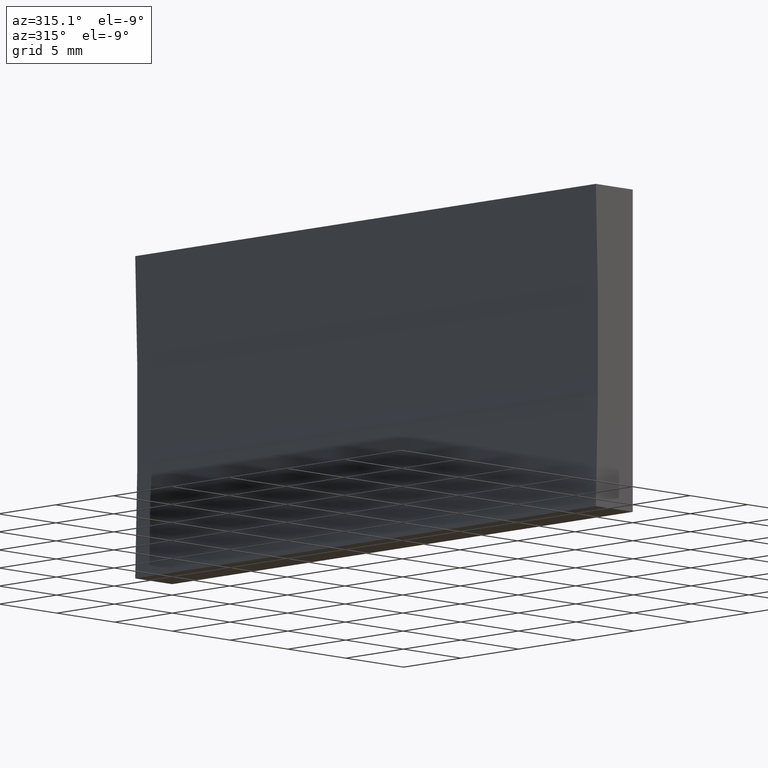
[diagram: clean part render]
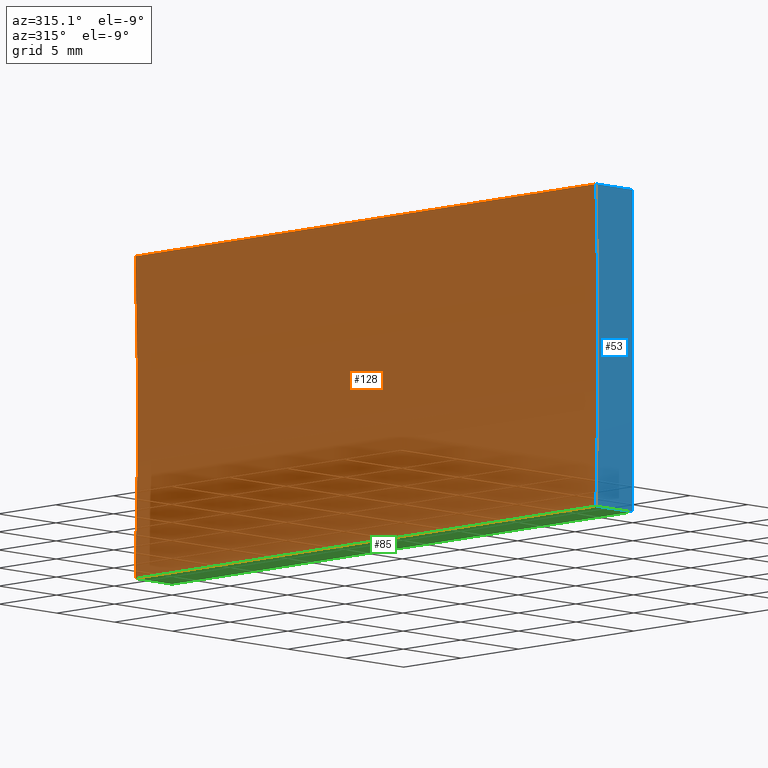
[diagram: same view with three faces highlighted in distinct colors, each labeled with its STEP entity id]
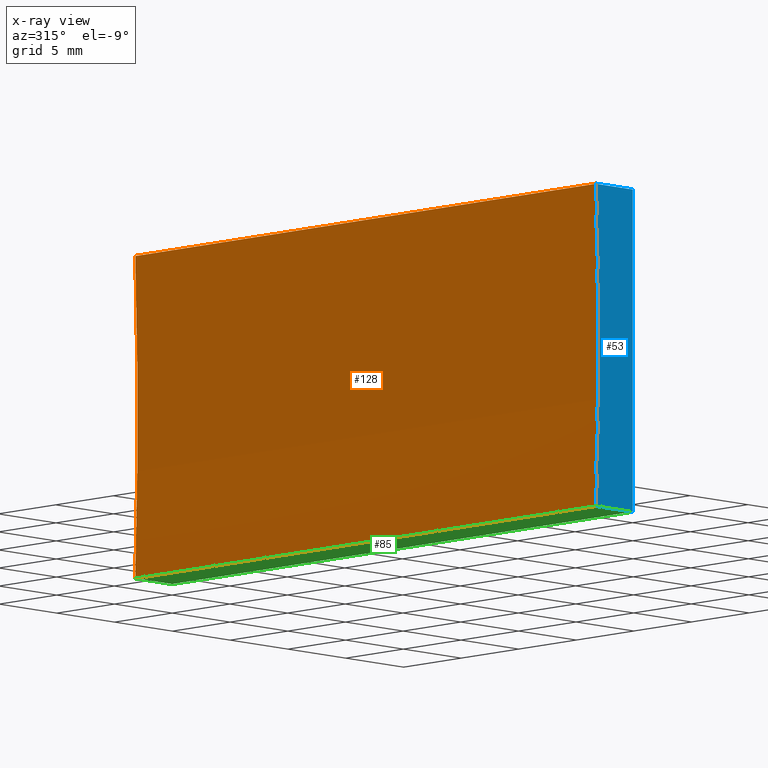
[diagram: x-ray of the same camera — body ghosted, the three highlighted faces saturated]
A machine part, auxiliary view with three faces highlighted in distinct colors.
The next image is the same camera in x-ray (body ghosted, the three faces saturated) — at least one of them is partly hidden behind the body in this view.
Their STEP definitions:

[orange] entity #128 — the highlighted cylindrical surface (partial cylindrical patch) has radius 258.5 mm, axis along (-0, -1, -0).
#21 = VERTEX_POINT ( 'NONE', #146 ) ;
#22 = CIRCLE ( 'NONE', #59, 258.5000000000000000 ) ;
#24 = CARTESIAN_POINT ( 'NONE',  ( -261.5000000000000000, 0.0000000000000000000, 10.00000000000003600 ) ) ;
#31 = LINE ( 'NONE', #202, #96 ) ;
#35 = VECTOR ( 'NONE', #45, 1000.000000000000000 ) ;
#37 = CYLINDRICAL_SURFACE ( 'NONE', #70, 258.5000000000000000 ) ;
#43 = ORIENTED_EDGE ( 'NONE', *, *, #156, .F. ) ;
#45 = DIRECTION ( 'NONE',  ( -0.0000000000000000000, -1.000000000000000000, -0.0000000000000000000 ) ) ;
#50 = LINE ( 'NONE', #197, #35 ) ;
#52 = DIRECTION ( 'NONE',  ( -0.0000000000000000000, -1.000000000000000000, -0.0000000000000000000 ) ) ;
#59 = AXIS2_PLACEMENT_3D ( 'NONE', #157, #52, #79 ) ;
#64 = DIRECTION ( 'NONE',  ( -0.0000000000000000000, -1.000000000000000000, -0.0000000000000000000 ) ) ;
#66 = CIRCLE ( 'NONE', #183, 258.5000000000000000 ) ;
#70 = AXIS2_PLACEMENT_3D ( 'NONE', #124, #147, #82 ) ;
#79 = DIRECTION ( 'NONE',  ( 0.0000000000000000000, 0.0000000000000000000, 1.000000000000000000 ) ) ;
#82 = DIRECTION ( 'NONE',  ( 0.0000000000000000000, 0.0000000000000000000, -1.000000000000000000 ) ) ;
#84 = EDGE_CURVE ( 'NONE', #177, #191, #31, .T. ) ;
#86 = EDGE_LOOP ( 'NONE', ( #129, #43, #90, #115 ) ) ;
#90 = ORIENTED_EDGE ( 'NONE', *, *, #192, .F. ) ;
#94 = DIRECTION ( 'NONE',  ( 0.0000000000000000000, 0.0000000000000000000, 1.000000000000000000 ) ) ;
#96 = VECTOR ( 'NONE', #188, 1000.000000000000000 ) ;
#108 = CARTESIAN_POINT ( 'NONE',  ( -3.193496016844377100, 40.00000000000000000, -1.734723475976807100E-014 ) ) ;
#109 = EDGE_CURVE ( 'NONE', #191, #21, #66, .T. ) ;
#115 = ORIENTED_EDGE ( 'NONE', *, *, #84, .T. ) ;
#117 = VERTEX_POINT ( 'NONE', #140 ) ;
#124 = CARTESIAN_POINT ( 'NONE',  ( -261.5000000000000000, 40.00000000000000000, 10.00000000000003600 ) ) ;
#128 = ADVANCED_FACE ( 'NONE', ( #190 ), #37, .F. ) ;
#129 = ORIENTED_EDGE ( 'NONE', *, *, #109, .T. ) ;
#140 = CARTESIAN_POINT ( 'NONE',  ( -3.193496016844379300, 40.00000000000000000, 20.00000000000000400 ) ) ;
#146 = CARTESIAN_POINT ( 'NONE',  ( -3.193496016844379300, 0.0000000000000000000, 20.00000000000000400 ) ) ;
#147 = DIRECTION ( 'NONE',  ( -0.0000000000000000000, -1.000000000000000000, -0.0000000000000000000 ) ) ;
#156 = EDGE_CURVE ( 'NONE', #117, #21, #50, .T. ) ;
#157 = CARTESIAN_POINT ( 'NONE',  ( -261.5000000000000000, 40.00000000000000000, 10.00000000000003600 ) ) ;
#177 = VERTEX_POINT ( 'NONE', #108 ) ;
#181 = CARTESIAN_POINT ( 'NONE',  ( -3.193496016844377100, 0.0000000000000000000, -1.734723475976807100E-014 ) ) ;
#183 = AXIS2_PLACEMENT_3D ( 'NONE', #24, #64, #94 ) ;
#188 = DIRECTION ( 'NONE',  ( -0.0000000000000000000, -1.000000000000000000, -0.0000000000000000000 ) ) ;
#190 = FACE_OUTER_BOUND ( 'NONE', #86, .T. ) ;
#191 = VERTEX_POINT ( 'NONE', #181 ) ;
#192 = EDGE_CURVE ( 'NONE', #177, #117, #22, .T. ) ;
#197 = CARTESIAN_POINT ( 'NONE',  ( -3.193496016844379300, 40.00000000000000000, 20.00000000000000400 ) ) ;
#202 = CARTESIAN_POINT ( 'NONE',  ( -3.193496016844377100, 40.00000000000000000, -1.734723475976807100E-014 ) ) ;

[blue] entity #53 — the highlighted planar face has unit normal (0, 1, 0).
#21 = VERTEX_POINT ( 'NONE', #146 ) ;
#24 = CARTESIAN_POINT ( 'NONE',  ( -261.5000000000000000, 0.0000000000000000000, 10.00000000000003600 ) ) ;
#33 = DIRECTION ( 'NONE',  ( -1.000000000000000000, 0.0000000000000000000, -1.086410295692778200E-015 ) ) ;
#36 = ORIENTED_EDGE ( 'NONE', *, *, #119, .F. ) ;
#40 = VECTOR ( 'NONE', #33, 1000.000000000000000 ) ;
#46 = DIRECTION ( 'NONE',  ( 0.0000000000000000000, 1.000000000000000000, 0.0000000000000000000 ) ) ;
#47 = LINE ( 'NONE', #198, #179 ) ;
#53 = ADVANCED_FACE ( 'NONE', ( #189 ), #141, .F. ) ;
#54 = LINE ( 'NONE', #170, #40 ) ;
#64 = DIRECTION ( 'NONE',  ( -0.0000000000000000000, -1.000000000000000000, -0.0000000000000000000 ) ) ;
#66 = CIRCLE ( 'NONE', #183, 258.5000000000000000 ) ;
#74 = VERTEX_POINT ( 'NONE', #158 ) ;
#75 = ORIENTED_EDGE ( 'NONE', *, *, #116, .F. ) ;
#80 = DIRECTION ( 'NONE',  ( -6.123233995736766000E-017, -0.0000000000000000000, -1.000000000000000000 ) ) ;
#94 = DIRECTION ( 'NONE',  ( 0.0000000000000000000, 0.0000000000000000000, 1.000000000000000000 ) ) ;
#103 = EDGE_LOOP ( 'NONE', ( #135, #36, #75, #203 ) ) ;
#109 = EDGE_CURVE ( 'NONE', #191, #21, #66, .T. ) ;
#111 = VERTEX_POINT ( 'NONE', #137 ) ;
#116 = EDGE_CURVE ( 'NONE', #21, #74, #47, .T. ) ;
#119 = EDGE_CURVE ( 'NONE', #74, #111, #178, .T. ) ;
#135 = ORIENTED_EDGE ( 'NONE', *, *, #161, .F. ) ;
#137 = CARTESIAN_POINT ( 'NONE',  ( 0.0000000000000000000, 0.0000000000000000000, 0.0000000000000000000 ) ) ;
#139 = CARTESIAN_POINT ( 'NONE',  ( 0.0000000000000000000, 0.0000000000000000000, 0.0000000000000000000 ) ) ;
#141 = PLANE ( 'NONE',  #187 ) ;
#146 = CARTESIAN_POINT ( 'NONE',  ( -3.193496016844379300, 0.0000000000000000000, 20.00000000000000400 ) ) ;
#158 = CARTESIAN_POINT ( 'NONE',  ( 1.224646799147353300E-015, 0.0000000000000000000, 20.00000000000000000 ) ) ;
#159 = CARTESIAN_POINT ( 'NONE',  ( -261.5000000000000000, 0.0000000000000000000, 10.00000000000003600 ) ) ;
#161 = EDGE_CURVE ( 'NONE', #111, #191, #54, .T. ) ;
#170 = CARTESIAN_POINT ( 'NONE',  ( 0.0000000000000000000, 0.0000000000000000000, 0.0000000000000000000 ) ) ;
#178 = LINE ( 'NONE', #139, #186 ) ;
#179 = VECTOR ( 'NONE', #200, 1000.000000000000000 ) ;
#181 = CARTESIAN_POINT ( 'NONE',  ( -3.193496016844377100, 0.0000000000000000000, -1.734723475976807100E-014 ) ) ;
#182 = DIRECTION ( 'NONE',  ( 0.0000000000000000000, -0.0000000000000000000, 1.000000000000000000 ) ) ;
#183 = AXIS2_PLACEMENT_3D ( 'NONE', #24, #64, #94 ) ;
#186 = VECTOR ( 'NONE', #80, 1000.000000000000000 ) ;
#187 = AXIS2_PLACEMENT_3D ( 'NONE', #159, #46, #182 ) ;
#189 = FACE_OUTER_BOUND ( 'NONE', #103, .T. ) ;
#191 = VERTEX_POINT ( 'NONE', #181 ) ;
#198 = CARTESIAN_POINT ( 'NONE',  ( 1.224646799147353300E-015, 0.0000000000000000000, 20.00000000000000000 ) ) ;
#200 = DIRECTION ( 'NONE',  ( 1.000000000000000000, -0.0000000000000000000, -1.086410295692778600E-015 ) ) ;
#203 = ORIENTED_EDGE ( 'NONE', *, *, #109, .F. ) ;

[green] entity #85 — the highlighted planar face has unit normal (-0, 0, 1).
#5 = ORIENTED_EDGE ( 'NONE', *, *, #161, .T. ) ;
#8 = VECTOR ( 'NONE', #9, 1000.000000000000000 ) ;
#9 = DIRECTION ( 'NONE',  ( -0.0000000000000000000, -1.000000000000000000, -0.0000000000000000000 ) ) ;
#11 = LINE ( 'NONE', #138, #125 ) ;
#14 = LINE ( 'NONE', #89, #8 ) ;
#16 = ORIENTED_EDGE ( 'NONE', *, *, #84, .F. ) ;
#27 = DIRECTION ( 'NONE',  ( -1.000000000000000000, 0.0000000000000000000, -1.086410295692778200E-015 ) ) ;
#31 = LINE ( 'NONE', #202, #96 ) ;
#33 = DIRECTION ( 'NONE',  ( -1.000000000000000000, 0.0000000000000000000, -1.086410295692778200E-015 ) ) ;
#39 = DIRECTION ( 'NONE',  ( 1.000000000000000000, 0.0000000000000000000, 1.086410295692778200E-015 ) ) ;
#40 = VECTOR ( 'NONE', #33, 1000.000000000000000 ) ;
#41 = PLANE ( 'NONE',  #72 ) ;
#54 = LINE ( 'NONE', #170, #40 ) ;
#57 = VERTEX_POINT ( 'NONE', #169 ) ;
#63 = ORIENTED_EDGE ( 'NONE', *, *, #171, .T. ) ;
#72 = AXIS2_PLACEMENT_3D ( 'NONE', #155, #173, #39 ) ;
#84 = EDGE_CURVE ( 'NONE', #177, #191, #31, .T. ) ;
#85 = ADVANCED_FACE ( 'NONE', ( #194 ), #41, .F. ) ;
#89 = CARTESIAN_POINT ( 'NONE',  ( 0.0000000000000000000, 40.00000000000000000, 0.0000000000000000000 ) ) ;
#96 = VECTOR ( 'NONE', #188, 1000.000000000000000 ) ;
#105 = ORIENTED_EDGE ( 'NONE', *, *, #118, .F. ) ;
#108 = CARTESIAN_POINT ( 'NONE',  ( -3.193496016844377100, 40.00000000000000000, -1.734723475976807100E-014 ) ) ;
#111 = VERTEX_POINT ( 'NONE', #137 ) ;
#118 = EDGE_CURVE ( 'NONE', #57, #177, #11, .T. ) ;
#125 = VECTOR ( 'NONE', #27, 1000.000000000000000 ) ;
#137 = CARTESIAN_POINT ( 'NONE',  ( 0.0000000000000000000, 0.0000000000000000000, 0.0000000000000000000 ) ) ;
#138 = CARTESIAN_POINT ( 'NONE',  ( 0.0000000000000000000, 40.00000000000000000, 0.0000000000000000000 ) ) ;
#152 = EDGE_LOOP ( 'NONE', ( #5, #16, #105, #63 ) ) ;
#155 = CARTESIAN_POINT ( 'NONE',  ( 0.0000000000000000000, 40.00000000000000000, 0.0000000000000000000 ) ) ;
#161 = EDGE_CURVE ( 'NONE', #111, #191, #54, .T. ) ;
#169 = CARTESIAN_POINT ( 'NONE',  ( 0.0000000000000000000, 40.00000000000000000, 0.0000000000000000000 ) ) ;
#170 = CARTESIAN_POINT ( 'NONE',  ( 0.0000000000000000000, 0.0000000000000000000, 0.0000000000000000000 ) ) ;
#171 = EDGE_CURVE ( 'NONE', #57, #111, #14, .T. ) ;
#173 = DIRECTION ( 'NONE',  ( -1.086410295692778200E-015, 0.0000000000000000000, 1.000000000000000000 ) ) ;
#177 = VERTEX_POINT ( 'NONE', #108 ) ;
#181 = CARTESIAN_POINT ( 'NONE',  ( -3.193496016844377100, 0.0000000000000000000, -1.734723475976807100E-014 ) ) ;
#188 = DIRECTION ( 'NONE',  ( -0.0000000000000000000, -1.000000000000000000, -0.0000000000000000000 ) ) ;
#191 = VERTEX_POINT ( 'NONE', #181 ) ;
#194 = FACE_OUTER_BOUND ( 'NONE', #152, .T. ) ;
#202 = CARTESIAN_POINT ( 'NONE',  ( -3.193496016844377100, 40.00000000000000000, -1.734723475976807100E-014 ) ) ;